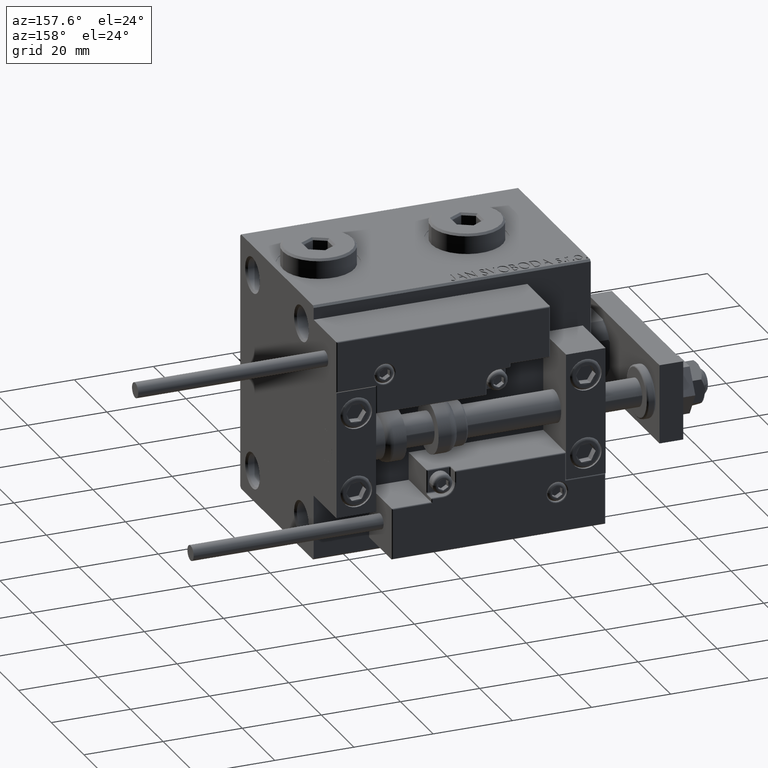
[diagram: clean part render]
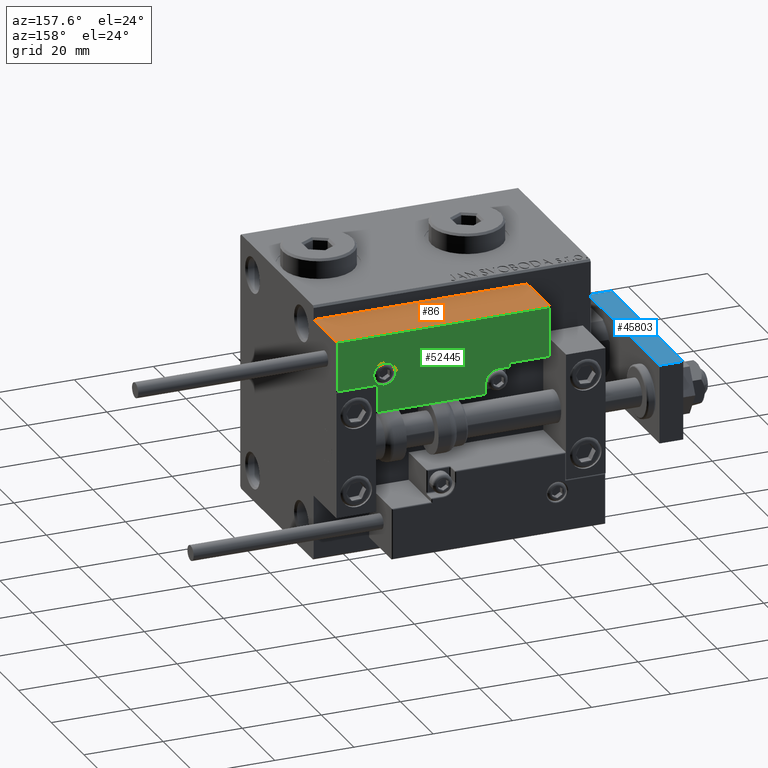
[diagram: same view with three faces highlighted in distinct colors, each labeled with its STEP entity id]
A machine part, auxiliary view with three faces highlighted in distinct colors.
Their STEP definitions:

[orange] entity #86 — the highlighted planar face has unit normal (0, -0, -1).
#86 = ADVANCED_FACE ( 'NONE', ( #36842 ), #15849, .F. ) ;
#3949 = CARTESIAN_POINT ( 'NONE',  ( -26.99999999999993605, 20.00000000000002132, 14.00000000000000000 ) ) ;
#9002 = ORIENTED_EDGE ( 'NONE', *, *, #21641, .F. ) ;
#10335 = CARTESIAN_POINT ( 'NONE',  ( 27.00000000000006395, 20.00000000000001776, 13.70000000000000107 ) ) ;
#10860 = VERTEX_POINT ( 'NONE', #14358 ) ;
#11357 = CARTESIAN_POINT ( 'NONE',  ( 27.00000000000006395, 20.00000000000001776, 0.000000000000000000 ) ) ;
#11917 = DIRECTION ( 'NONE',  ( -0.000000000000000000, -0.000000000000000000, -1.000000000000000000 ) ) ;
#12390 = CARTESIAN_POINT ( 'NONE',  ( 27.00000000000006395, 20.00000000000001776, 14.00000000000000000 ) ) ;
#13766 = VECTOR ( 'NONE', #52552, 1000.000000000000000 ) ;
#14358 = CARTESIAN_POINT ( 'NONE',  ( -26.99999999999993605, 20.00000000000002132, 13.70000000000000107 ) ) ;
#15152 = CARTESIAN_POINT ( 'NONE',  ( 27.00000000000006395, 20.00000000000001776, 0.000000000000000000 ) ) ;
#15664 = EDGE_CURVE ( 'NONE', #38384, #49742, #43832, .T. ) ;
#15849 = PLANE ( 'NONE',  #49529 ) ;
#17426 = LINE ( 'NONE', #3949, #22550 ) ;
#18850 = LINE ( 'NONE', #10335, #25389 ) ;
#20118 = DIRECTION ( 'NONE',  ( -6.424901762877063495E-17, -1.000000000000000000, 0.000000000000000000 ) ) ;
#21641 = EDGE_CURVE ( 'NONE', #10860, #31966, #17426, .T. ) ;
#22550 = VECTOR ( 'NONE', #32377, 1000.000000000000000 ) ;
#23022 = EDGE_LOOP ( 'NONE', ( #9002, #48611, #46071, #51446 ) ) ;
#25389 = VECTOR ( 'NONE', #50749, 1000.000000000000000 ) ;
#27891 = CARTESIAN_POINT ( 'NONE',  ( -26.99999999999993605, 20.00000000000002132, 0.000000000000000000 ) ) ;
#31966 = VERTEX_POINT ( 'NONE', #27891 ) ;
#32377 = DIRECTION ( 'NONE',  ( -0.000000000000000000, -0.000000000000000000, -1.000000000000000000 ) ) ;
#36069 = LINE ( 'NONE', #11357, #13766 ) ;
#36309 = DIRECTION ( 'NONE',  ( 1.000000000000000000, -6.424901762877063495E-17, 0.000000000000000000 ) ) ;
#36842 = FACE_OUTER_BOUND ( 'NONE', #23022, .T. ) ;
#37038 = EDGE_CURVE ( 'NONE', #49742, #31966, #36069, .T. ) ;
#38357 = EDGE_CURVE ( 'NONE', #10860, #38384, #18850, .T. ) ;
#38384 = VERTEX_POINT ( 'NONE', #47278 ) ;
#40095 = CARTESIAN_POINT ( 'NONE',  ( 27.00000000000006395, 20.00000000000001776, 14.00000000000000000 ) ) ;
#43832 = LINE ( 'NONE', #40095, #44538 ) ;
#44538 = VECTOR ( 'NONE', #11917, 1000.000000000000000 ) ;
#46071 = ORIENTED_EDGE ( 'NONE', *, *, #15664, .T. ) ;
#47278 = CARTESIAN_POINT ( 'NONE',  ( 27.00000000000006395, 20.00000000000001776, 13.70000000000000107 ) ) ;
#48611 = ORIENTED_EDGE ( 'NONE', *, *, #38357, .T. ) ;
#49529 = AXIS2_PLACEMENT_3D ( 'NONE', #12390, #20118, #36309 ) ;
#49742 = VERTEX_POINT ( 'NONE', #15152 ) ;
#50749 = DIRECTION ( 'NONE',  ( 1.000000000000000000, -6.424901762877063495E-17, -0.000000000000000000 ) ) ;
#51446 = ORIENTED_EDGE ( 'NONE', *, *, #37038, .T. ) ;
#52552 = DIRECTION ( 'NONE',  ( -1.000000000000000000, 6.424901762877062263E-17, 0.000000000000000000 ) ) ;

[blue] entity #45803 — the highlighted planar face has unit normal (-0, -0, -1).
#1298 = CARTESIAN_POINT ( 'NONE',  ( 10.00000000000000178, 48.00000000000000000, 6.000000000000000000 ) ) ;
#1339 = DIRECTION ( 'NONE',  ( -1.000000000000000000, -7.228014483236695816E-17, 0.000000000000000000 ) ) ;
#6181 = EDGE_CURVE ( 'NONE', #47431, #23534, #9891, .T. ) ;
#6189 = VECTOR ( 'NONE', #18697, 1000.000000000000000 ) ;
#6247 = DIRECTION ( 'NONE',  ( 0.000000000000000000, 0.000000000000000000, -1.000000000000000000 ) ) ;
#9891 = LINE ( 'NONE', #38321, #21752 ) ;
#10229 = LINE ( 'NONE', #26454, #12803 ) ;
#11449 = CARTESIAN_POINT ( 'NONE',  ( 10.00000000000000533, 4.239999999999986890, 0.000000000000000000 ) ) ;
#12107 = EDGE_CURVE ( 'NONE', #45636, #23915, #41640, .T. ) ;
#12803 = VECTOR ( 'NONE', #6247, 1000.000000000000000 ) ;
#12920 = CARTESIAN_POINT ( 'NONE',  ( 10.00000000000000533, 0.000000000000000000, 0.000000000000000000 ) ) ;
#16489 = PLANE ( 'NONE',  #45072 ) ;
#17591 = CARTESIAN_POINT ( 'NONE',  ( 10.00000000000000178, 48.00000000000000000, 6.000000000000000000 ) ) ;
#18697 = DIRECTION ( 'NONE',  ( -7.228014483236695816E-17, 1.000000000000000000, 0.000000000000000000 ) ) ;
#21752 = VECTOR ( 'NONE', #33304, 1000.000000000000000 ) ;
#23324 = ORIENTED_EDGE ( 'NONE', *, *, #46280, .T. ) ;
#23534 = VERTEX_POINT ( 'NONE', #1298 ) ;
#23915 = VERTEX_POINT ( 'NONE', #48819 ) ;
#26454 = CARTESIAN_POINT ( 'NONE',  ( 10.00000000000000533, 4.239999999999986890, 6.000000000000000000 ) ) ;
#28975 = FACE_OUTER_BOUND ( 'NONE', #51251, .T. ) ;
#29501 = DIRECTION ( 'NONE',  ( 7.228014483236695816E-17, -1.000000000000000000, 0.000000000000000000 ) ) ;
#30330 = DIRECTION ( 'NONE',  ( -0.000000000000000000, -0.000000000000000000, -1.000000000000000000 ) ) ;
#31921 = EDGE_CURVE ( 'NONE', #23534, #23915, #46808, .T. ) ;
#33304 = DIRECTION ( 'NONE',  ( -7.228014483236695816E-17, 1.000000000000000000, 0.000000000000000000 ) ) ;
#37487 = CARTESIAN_POINT ( 'NONE',  ( 10.00000000000000533, 0.000000000000000000, 6.000000000000000000 ) ) ;
#38321 = CARTESIAN_POINT ( 'NONE',  ( 10.00000000000000533, 0.000000000000000000, 6.000000000000000000 ) ) ;
#38947 = VECTOR ( 'NONE', #30330, 1000.000000000000000 ) ;
#39520 = ORIENTED_EDGE ( 'NONE', *, *, #6181, .F. ) ;
#40023 = CARTESIAN_POINT ( 'NONE',  ( 10.00000000000000533, 4.239999999999986890, 6.000000000000000000 ) ) ;
#41640 = LINE ( 'NONE', #12920, #6189 ) ;
#45072 = AXIS2_PLACEMENT_3D ( 'NONE', #37487, #1339, #29501 ) ;
#45636 = VERTEX_POINT ( 'NONE', #11449 ) ;
#45803 = ADVANCED_FACE ( 'NONE', ( #28975 ), #16489, .F. ) ;
#46091 = ORIENTED_EDGE ( 'NONE', *, *, #12107, .T. ) ;
#46280 = EDGE_CURVE ( 'NONE', #47431, #45636, #10229, .T. ) ;
#46808 = LINE ( 'NONE', #17591, #38947 ) ;
#47431 = VERTEX_POINT ( 'NONE', #40023 ) ;
#48819 = CARTESIAN_POINT ( 'NONE',  ( 10.00000000000000178, 48.00000000000000000, 0.000000000000000000 ) ) ;
#51180 = ORIENTED_EDGE ( 'NONE', *, *, #31921, .F. ) ;
#51251 = EDGE_LOOP ( 'NONE', ( #39520, #23324, #46091, #51180 ) ) ;

[green] entity #52445 — the highlighted planar face has unit normal (-0, 1, -0).
#143 = LINE ( 'NONE', #48268, #6067 ) ;
#1252 = CARTESIAN_POINT ( 'NONE',  ( -16.69999999999999218, 7.300000000000003375, 14.00000000000000000 ) ) ;
#1557 = VECTOR ( 'NONE', #35885, 1000.000000000000000 ) ;
#2092 = CIRCLE ( 'NONE', #30966, 2.800000000000000266 ) ;
#2349 = EDGE_CURVE ( 'NONE', #36859, #16647, #47878, .T. ) ;
#2732 = CARTESIAN_POINT ( 'NONE',  ( -17.59999999999994813, 9.800000000000004263, 14.00000000000000000 ) ) ;
#2878 = EDGE_CURVE ( 'NONE', #11284, #3202, #2092, .T. ) ;
#2897 = CARTESIAN_POINT ( 'NONE',  ( 16.69999999999999929, 7.300000000000009592, 14.00000000000000000 ) ) ;
#2967 = CARTESIAN_POINT ( 'NONE',  ( -16.69999999999999218, 3.252606517456513302E-15, 14.00000000000000000 ) ) ;
#3202 = VERTEX_POINT ( 'NONE', #6487 ) ;
#3223 = CARTESIAN_POINT ( 'NONE',  ( 16.69999999999999929, 6.300000000000003375, 14.00000000000000000 ) ) ;
#3355 = LINE ( 'NONE', #3599, #32053 ) ;
#3549 = LINE ( 'NONE', #34683, #41282 ) ;
#3599 = CARTESIAN_POINT ( 'NONE',  ( -26.69999999999994600, 7.000000000000005329, 14.00000000000000000 ) ) ;
#3946 = ORIENTED_EDGE ( 'NONE', *, *, #46801, .T. ) ;
#4125 = DIRECTION ( 'NONE',  ( 0.000000000000000000, -0.000000000000000000, -1.000000000000000000 ) ) ;
#4347 = LINE ( 'NONE', #20564, #8533 ) ;
#4659 = VERTEX_POINT ( 'NONE', #1252 ) ;
#5068 = ORIENTED_EDGE ( 'NONE', *, *, #50705, .T. ) ;
#5825 = CARTESIAN_POINT ( 'NONE',  ( 10.69999999999999929, 3.000000000000003109, 14.00000000000000000 ) ) ;
#6067 = VECTOR ( 'NONE', #8636, 1000.000000000000000 ) ;
#6487 = CARTESIAN_POINT ( 'NONE',  ( -11.99999999999994849, 9.800000000000004263, 14.00000000000000000 ) ) ;
#6506 = LINE ( 'NONE', #26704, #10721 ) ;
#6565 = ORIENTED_EDGE ( 'NONE', *, *, #6953, .T. ) ;
#6953 = EDGE_CURVE ( 'NONE', #48741, #36859, #3549, .T. ) ;
#6958 = EDGE_CURVE ( 'NONE', #15918, #48741, #6506, .T. ) ;
#7248 = ORIENTED_EDGE ( 'NONE', *, *, #46002, .T. ) ;
#7873 = EDGE_CURVE ( 'NONE', #13432, #36774, #33995, .T. ) ;
#8050 = DIRECTION ( 'NONE',  ( 1.000000000000000000, -1.734723475976815230E-16, 0.000000000000000000 ) ) ;
#8381 = DIRECTION ( 'NONE',  ( 1.000000000000000000, 5.782411586589357639E-16, -0.000000000000000000 ) ) ;
#8533 = VECTOR ( 'NONE', #8050, 1000.000000000000000 ) ;
#8636 = DIRECTION ( 'NONE',  ( -1.000000000000000000, 6.424901762877063495E-17, -0.000000000000000000 ) ) ;
#9665 = AXIS2_PLACEMENT_3D ( 'NONE', #14187, #30928, #30404 ) ;
#10721 = VECTOR ( 'NONE', #43704, 1000.000000000000000 ) ;
#10756 = CARTESIAN_POINT ( 'NONE',  ( -16.69999999999999218, 0.3000000000000032085, 14.00000000000000000 ) ) ;
#11233 = EDGE_LOOP ( 'NONE', ( #44814, #32140, #6565, #15144, #40328, #30987, #45410, #3946, #7248, #27691, #12098 ) ) ;
#11284 = VERTEX_POINT ( 'NONE', #2732 ) ;
#11729 = FACE_BOUND ( 'NONE', #15731, .T. ) ;
#11971 = DIRECTION ( 'NONE',  ( 0.000000000000000000, 1.000000000000000000, -0.000000000000000000 ) ) ;
#12098 = ORIENTED_EDGE ( 'NONE', *, *, #35818, .T. ) ;
#12594 = CARTESIAN_POINT ( 'NONE',  ( -26.69999999999993534, 19.70000000000002061, 14.00000000000000000 ) ) ;
#13432 = VERTEX_POINT ( 'NONE', #2897 ) ;
#14187 = CARTESIAN_POINT ( 'NONE',  ( 13.99999999999999822, 3.000000000000002665, 14.00000000000000000 ) ) ;
#15142 = CARTESIAN_POINT ( 'NONE',  ( 10.69999999999999929, 0.3000000000000032085, 14.00000000000000000 ) ) ;
#15144 = ORIENTED_EDGE ( 'NONE', *, *, #2349, .T. ) ;
#15478 = CARTESIAN_POINT ( 'NONE',  ( 16.69999999999999929, 7.000000000000009770, 14.00000000000000000 ) ) ;
#15731 = EDGE_LOOP ( 'NONE', ( #5068, #33986 ) ) ;
#15918 = VERTEX_POINT ( 'NONE', #10756 ) ;
#16264 = LINE ( 'NONE', #15478, #48243 ) ;
#16515 = DIRECTION ( 'NONE',  ( 1.000000000000000000, 0.000000000000000000, 0.000000000000000000 ) ) ;
#16647 = VERTEX_POINT ( 'NONE', #52560 ) ;
#17503 = VERTEX_POINT ( 'NONE', #3223 ) ;
#18826 = CARTESIAN_POINT ( 'NONE',  ( 27.00000000000006395, 7.300000000000007816, 14.00000000000000000 ) ) ;
#19193 = DIRECTION ( 'NONE',  ( 0.000000000000000000, -0.000000000000000000, -1.000000000000000000 ) ) ;
#19246 = VECTOR ( 'NONE', #50726, 1000.000000000000000 ) ;
#20564 = CARTESIAN_POINT ( 'NONE',  ( -16.99999999999999289, 7.300000000000003375, 14.00000000000000000 ) ) ;
#23045 = VERTEX_POINT ( 'NONE', #46670 ) ;
#24470 = LINE ( 'NONE', #2967, #1557 ) ;
#25151 = LINE ( 'NONE', #52521, #33052 ) ;
#26633 = CARTESIAN_POINT ( 'NONE',  ( -14.79999999999994920, 9.800000000000004263, 14.00000000000000000 ) ) ;
#26704 = CARTESIAN_POINT ( 'NONE',  ( 11.00000000000000000, 0.3000000000000032085, 14.00000000000000000 ) ) ;
#27294 = AXIS2_PLACEMENT_3D ( 'NONE', #26633, #19193, #51342 ) ;
#27471 = DIRECTION ( 'NONE',  ( -0.000000000000000000, 1.000000000000000000, -0.000000000000000000 ) ) ;
#27691 = ORIENTED_EDGE ( 'NONE', *, *, #37992, .T. ) ;
#28192 = AXIS2_PLACEMENT_3D ( 'NONE', #40705, #36702, #16515 ) ;
#28267 = EDGE_CURVE ( 'NONE', #17503, #13432, #16264, .T. ) ;
#30404 = DIRECTION ( 'NONE',  ( 1.000000000000000000, 0.000000000000000000, 0.000000000000000000 ) ) ;
#30928 = DIRECTION ( 'NONE',  ( 0.000000000000000000, -0.000000000000000000, -1.000000000000000000 ) ) ;
#30966 = AXIS2_PLACEMENT_3D ( 'NONE', #31521, #4125, #44523 ) ;
#30987 = ORIENTED_EDGE ( 'NONE', *, *, #28267, .T. ) ;
#31345 = VERTEX_POINT ( 'NONE', #12594 ) ;
#31521 = CARTESIAN_POINT ( 'NONE',  ( -14.79999999999994920, 9.800000000000004263, 14.00000000000000000 ) ) ;
#32053 = VECTOR ( 'NONE', #39490, 1000.000000000000000 ) ;
#32140 = ORIENTED_EDGE ( 'NONE', *, *, #6958, .T. ) ;
#33052 = VECTOR ( 'NONE', #8381, 1000.000000000000000 ) ;
#33986 = ORIENTED_EDGE ( 'NONE', *, *, #2878, .T. ) ;
#33995 = LINE ( 'NONE', #18826, #19246 ) ;
#34683 = CARTESIAN_POINT ( 'NONE',  ( 10.69999999999999929, 3.000000000000003109, 14.00000000000000000 ) ) ;
#35818 = EDGE_CURVE ( 'NONE', #23045, #4659, #4347, .T. ) ;
#35885 = DIRECTION ( 'NONE',  ( 0.000000000000000000, -1.000000000000000000, 0.000000000000000000 ) ) ;
#36702 = DIRECTION ( 'NONE',  ( -0.000000000000000000, 0.000000000000000000, 1.000000000000000000 ) ) ;
#36774 = VERTEX_POINT ( 'NONE', #45174 ) ;
#36859 = VERTEX_POINT ( 'NONE', #5825 ) ;
#36910 = VERTEX_POINT ( 'NONE', #42498 ) ;
#37992 = EDGE_CURVE ( 'NONE', #31345, #23045, #3355, .T. ) ;
#39279 = CIRCLE ( 'NONE', #27294, 2.800000000000000266 ) ;
#39490 = DIRECTION ( 'NONE',  ( -8.006416042969869188E-16, -1.000000000000000000, 0.000000000000000000 ) ) ;
#39858 = EDGE_CURVE ( 'NONE', #4659, #15918, #24470, .T. ) ;
#40163 = FACE_OUTER_BOUND ( 'NONE', #11233, .T. ) ;
#40328 = ORIENTED_EDGE ( 'NONE', *, *, #41991, .T. ) ;
#40705 = CARTESIAN_POINT ( 'NONE',  ( 0.000000000000000000, 0.000000000000000000, 14.00000000000000000 ) ) ;
#41282 = VECTOR ( 'NONE', #27471, 1000.000000000000000 ) ;
#41991 = EDGE_CURVE ( 'NONE', #16647, #17503, #25151, .T. ) ;
#42498 = CARTESIAN_POINT ( 'NONE',  ( 26.70000000000006324, 19.70000000000001705, 14.00000000000000000 ) ) ;
#43704 = DIRECTION ( 'NONE',  ( 1.000000000000000000, -0.000000000000000000, 0.000000000000000000 ) ) ;
#44149 = LINE ( 'NONE', #51863, #51057 ) ;
#44441 = DIRECTION ( 'NONE',  ( 9.912705577010318647E-16, 1.000000000000000000, 0.000000000000000000 ) ) ;
#44523 = DIRECTION ( 'NONE',  ( 1.000000000000000000, 0.000000000000000000, 0.000000000000000000 ) ) ;
#44814 = ORIENTED_EDGE ( 'NONE', *, *, #39858, .T. ) ;
#45174 = CARTESIAN_POINT ( 'NONE',  ( 26.70000000000006324, 7.300000000000007816, 14.00000000000000000 ) ) ;
#45410 = ORIENTED_EDGE ( 'NONE', *, *, #7873, .T. ) ;
#46002 = EDGE_CURVE ( 'NONE', #36910, #31345, #143, .T. ) ;
#46670 = CARTESIAN_POINT ( 'NONE',  ( -26.69999999999994600, 7.300000000000005151, 14.00000000000000000 ) ) ;
#46801 = EDGE_CURVE ( 'NONE', #36774, #36910, #44149, .T. ) ;
#47878 = CIRCLE ( 'NONE', #9665, 3.299999999999997158 ) ;
#48243 = VECTOR ( 'NONE', #44441, 1000.000000000000000 ) ;
#48268 = CARTESIAN_POINT ( 'NONE',  ( -26.99999999999993605, 19.70000000000002061, 14.00000000000000000 ) ) ;
#48741 = VERTEX_POINT ( 'NONE', #15142 ) ;
#49211 = PLANE ( 'NONE',  #28192 ) ;
#50705 = EDGE_CURVE ( 'NONE', #3202, #11284, #39279, .T. ) ;
#50726 = DIRECTION ( 'NONE',  ( 1.000000000000000000, -1.734723475976796001E-16, 0.000000000000000000 ) ) ;
#51057 = VECTOR ( 'NONE', #11971, 1000.000000000000000 ) ;
#51342 = DIRECTION ( 'NONE',  ( 1.000000000000000000, 0.000000000000000000, 0.000000000000000000 ) ) ;
#51863 = CARTESIAN_POINT ( 'NONE',  ( 26.70000000000006324, 20.00000000000001776, 14.00000000000000000 ) ) ;
#52445 = ADVANCED_FACE ( 'NONE', ( #11729, #40163 ), #49211, .T. ) ;
#52521 = CARTESIAN_POINT ( 'NONE',  ( 17.00000000000000000, 6.300000000000003375, 14.00000000000000000 ) ) ;
#52560 = CARTESIAN_POINT ( 'NONE',  ( 13.99999999999999822, 6.300000000000001599, 14.00000000000000000 ) ) ;